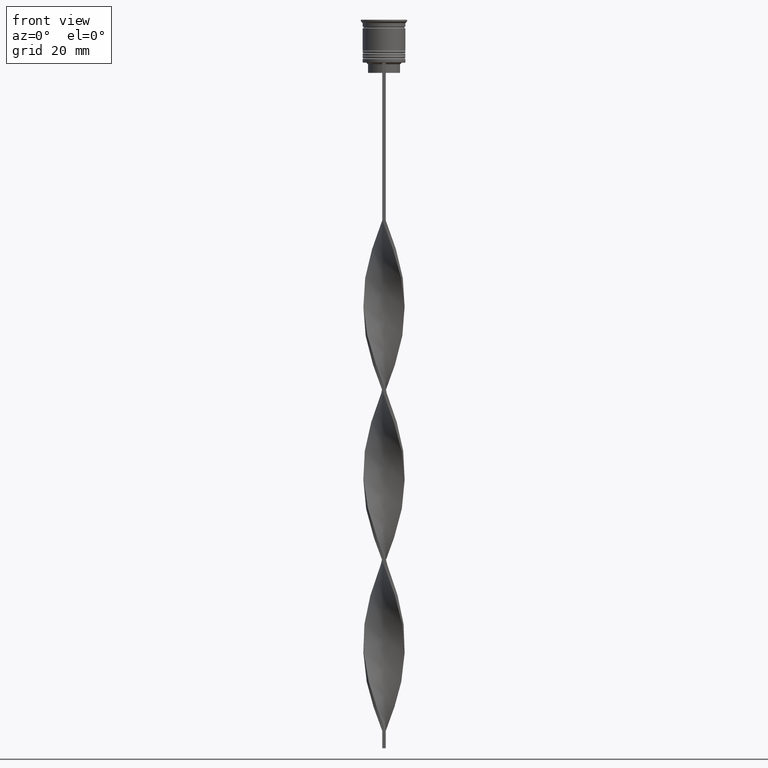
[diagram: clean part render]
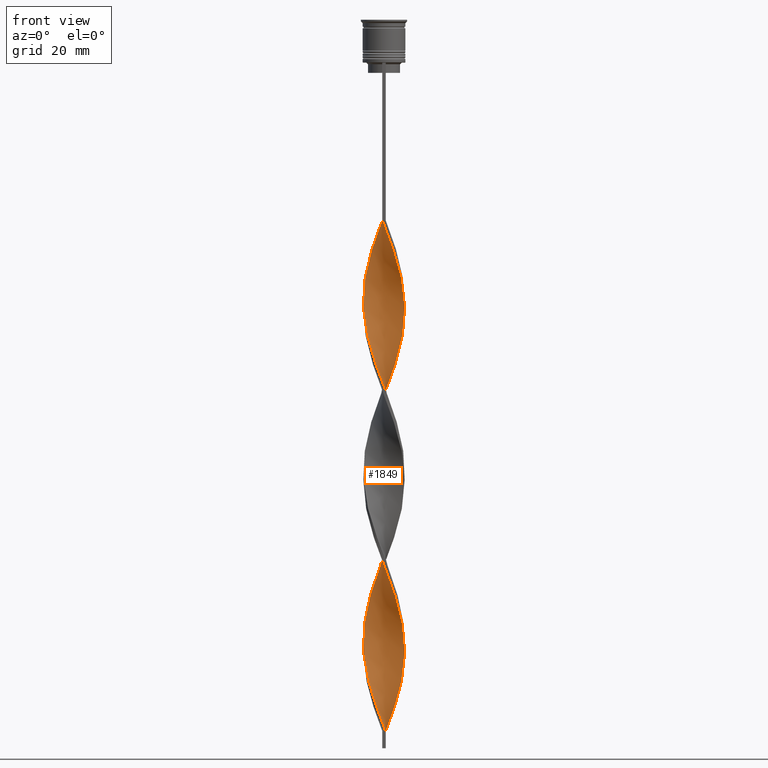
[diagram: same view with one face highlighted and labeled with its STEP entity id]
A machine part, front view. The second image highlights one B-rep face of the part: STEP entity #1849.
In plain terms, the highlighted face is a freeform B-spline surface patch.
Its self-contained STEP definition (entity closure, byte-faithful):
#2 = CARTESIAN_POINT ( 'NONE',  ( -2.131985436030567005, 5.658259501511265555, -62.88235294117647811 ) ) ;
#11 = CARTESIAN_POINT ( 'NONE',  ( 4.411678320489672345, -4.097205681500676988, -119.8529411764705799 ) ) ;
#13 = CARTESIAN_POINT ( 'NONE',  ( 2.236388528178715696, 5.617813528137046930, -150.5294117647058840 ) ) ;
#18 = CARTESIAN_POINT ( 'NONE',  ( -1.593983656741372767, 5.805963839195126042, -61.42156862745097357 ) ) ;
#27 = CARTESIAN_POINT ( 'NONE',  ( -0.4999999999999997780, 6.000000000000000000, -157.8333333333333144 ) ) ;
#34 = CARTESIAN_POINT ( 'NONE',  ( 5.907785354072955464, -1.161065118846089428, -128.6176470588235361 ) ) ;
#70 = CARTESIAN_POINT ( 'NONE',  ( -1.166039236662763656, 5.933094890902377294, -112.5490196078431495 ) ) ;
#77 = CARTESIAN_POINT ( 'NONE',  ( 0.6110105570574714262, -5.989713357011694939, -61.42156862745097357 ) ) ;
#85 = CARTESIAN_POINT ( 'NONE',  ( 4.411678320489673233, 4.097205681500676100, -96.48039215686274872 ) ) ;
#102 = CARTESIAN_POINT ( 'NONE',  ( 1.166039236662763656, -5.933094890902377294, -62.88235294117647101 ) ) ;
#127 = CARTESIAN_POINT ( 'NONE',  ( 0.05598187745217882844, -6.046331823121015248, -59.96078431372549034 ) ) ;
#130 = CARTESIAN_POINT ( 'NONE',  ( -4.114758515918087944, -4.430578386798787349, -194.3529411764705799 ) ) ;
#136 = CARTESIAN_POINT ( 'NONE',  ( 0.5000000000000005551, 6.000000000000000000, -108.1666666666666572 ) ) ;
#145 = CARTESIAN_POINT ( 'NONE',  ( -0.05598187745217925865, 6.046331823121015248, -109.6274509803921404 ) ) ;
#151 = CARTESIAN_POINT ( 'NONE',  ( 2.131985436030567893, 5.658259501511265555, -103.7843137254901933 ) ) ;
#160 = LINE ( 'NONE', #3704, #3080 ) ;
#163 = CARTESIAN_POINT ( 'NONE',  ( -5.928270878038556013, -1.051477244927328192, -184.1274509803921546 ) ) ;
#173 = CARTESIAN_POINT ( 'NONE',  ( -2.131985436030568781, -5.658259501511264666, -153.4509803921568789 ) ) ;
#184 = CARTESIAN_POINT ( 'NONE',  ( 1.055981877452177864, 5.953668176878987417, -206.0392156862745026 ) ) ;
#193 = CARTESIAN_POINT ( 'NONE',  ( 6.015373881509670007, 0.6136281867224272490, -86.25490196078432348 ) ) ;
#212 = CARTESIAN_POINT ( 'NONE',  ( 5.800196826636242697, 1.708502050969748609, -89.17647058823527573 ) ) ;
#219 = CARTESIAN_POINT ( 'NONE',  ( -5.634122364000872629, -2.122890762018907029, -87.71568627450979250 ) ) ;
#220 = CARTESIAN_POINT ( 'NONE',  ( 5.089420681871065888, 3.216799204635418352, -192.8921568627450824 ) ) ;
#222 = CARTESIAN_POINT ( 'NONE',  ( 1.166039236662765655, 5.933094890902375518, -153.4509803921568789 ) ) ;
#228 = CARTESIAN_POINT ( 'NONE',  ( -5.800196826636242697, 1.708502050969749497, -77.49019607843138147 ) ) ;
#241 = CARTESIAN_POINT ( 'NONE',  ( 1.593983656741371657, -5.805963839195126042, -111.0882352941176379 ) ) ;
#242 = CARTESIAN_POINT ( 'NONE',  ( 2.131985436030567893, 5.658259501511266443, -203.1176470588235361 ) ) ;
#243 = CARTESIAN_POINT ( 'NONE',  ( -4.032016302638261607, 4.506007880724164139, -168.0588235294117680 ) ) ;
#248 = CARTESIAN_POINT ( 'NONE',  ( -5.907785354072955464, 1.161065118846087207, -78.95098039215686470 ) ) ;
#257 = CARTESIAN_POINT ( 'NONE',  ( 6.015373881509670895, -0.6136281867224248066, -130.0784313725490335 ) ) ;
#264 = CARTESIAN_POINT ( 'NONE',  ( 1.055981877452178530, -5.953668176878986529, -109.6274509803921546 ) ) ;
#271 = CARTESIAN_POINT ( 'NONE',  ( -0.6110105570574716483, -5.989713357011694939, -105.2450980392156765 ) ) ;
#281 = CARTESIAN_POINT ( 'NONE',  ( 2.633686111825095377, 5.414212543332558525, -201.6568627450980387 ) ) ;
#292 = CARTESIAN_POINT ( 'NONE',  ( 3.230580290619941231, 5.111224263495680376, -147.6078431372548891 ) ) ;
#297 = CARTESIAN_POINT ( 'NONE',  ( 0.05598187745217871047, 6.046331823121016136, -156.3725490196078454 ) ) ;
#305 = CARTESIAN_POINT ( 'NONE',  ( -3.583701545128941568, 4.838086732939006929, -67.26470588235292780 ) ) ;
#312 = CARTESIAN_POINT ( 'NONE',  ( -1.055981877452178308, 5.953668176878985641, -159.2941176470588118 ) ) ;
#319 = CARTESIAN_POINT ( 'NONE',  ( 5.089420681871065000, -3.216799204635420129, -122.7745098039215605 ) ) ;
#325 = CARTESIAN_POINT ( 'NONE',  ( 5.928270878038556013, -1.051477244927329080, -81.87254901960783116 ) ) ;
#335 = VERTEX_POINT ( 'NONE', #440 ) ;
#372 = CARTESIAN_POINT ( 'NONE',  ( 0.6110105570574714262, -5.989713357011694939, -61.42156862745097357 ) ) ;
#388 = CARTESIAN_POINT ( 'NONE',  ( -4.486786045491808927, 4.014816431915658512, -122.7745098039215605 ) ) ;
#398 = CARTESIAN_POINT ( 'NONE',  ( 3.672669403269014143, -4.770901325147232974, -70.18627450980390847 ) ) ;
#405 = CARTESIAN_POINT ( 'NONE',  ( 0.5000000000000005551, 6.000000000000000000, -207.5000000000000000 ) ) ;
#406 = CARTESIAN_POINT ( 'NONE',  ( -5.800196826636242697, -1.708502050969747277, -138.8431372549019329 ) ) ;
#422 = CARTESIAN_POINT ( 'NONE',  ( -3.583701545128944232, -4.838086732939006041, -149.0686274509803866 ) ) ;
#429 = CARTESIAN_POINT ( 'NONE',  ( -5.089420681871066776, -3.216799204635417464, -143.2254901960784537 ) ) ;
#436 = CARTESIAN_POINT ( 'NONE',  ( 5.387501025401044252, 2.745194926993649975, -92.09803921568628482 ) ) ;
#440 = CARTESIAN_POINT ( 'NONE',  ( -0.4999999999999997780, -6.000000000000000000, -58.50000000000000000 ) ) ;
#445 = CARTESIAN_POINT ( 'NONE',  ( 4.114758515918087944, -4.430578386798787349, -170.9803921568627629 ) ) ;
#452 = CARTESIAN_POINT ( 'NONE',  ( -5.634122364000872629, 2.122890762018908362, -128.6176470588235361 ) ) ;
#475 = CARTESIAN_POINT ( 'NONE',  ( -0.05598187745217925865, 6.046331823121014359, -109.6274509803921546 ) ) ;
#491 = CARTESIAN_POINT ( 'NONE',  ( -5.437407565418680200, -2.644969083640991592, -188.5098039215686185 ) ) ;
#497 = CARTESIAN_POINT ( 'NONE',  ( 4.114758515918087944, -4.430578386798787349, -170.9803921568627629 ) ) ;
#504 = CARTESIAN_POINT ( 'NONE',  ( 1.166039236662765655, 5.933094890902376406, -153.4509803921568789 ) ) ;
#505 = CARTESIAN_POINT ( 'NONE',  ( 5.800196826636242697, 1.708502050969748609, -188.5098039215686185 ) ) ;
#507 = CARTESIAN_POINT ( 'NONE',  ( -3.583701545128941568, 4.838086732939006929, -166.5980392156862706 ) ) ;
#508 = CARTESIAN_POINT ( 'NONE',  ( 0.4999999999999995559, -2.000000000000000000, -207.5000000000000000 ) ) ;
#513 = CARTESIAN_POINT ( 'NONE',  ( -4.411678320489672345, 4.097205681500676988, -70.18627450980390847 ) ) ;
#522 = CARTESIAN_POINT ( 'NONE',  ( -6.025704593494046968, -0.5021420494578366922, -83.33333333333332860 ) ) ;
#523 = CARTESIAN_POINT ( 'NONE',  ( 2.633686111825095377, 5.414212543332558525, -201.6568627450980387 ) ) ;
#524 = CARTESIAN_POINT ( 'NONE',  ( 2.733484409399330239, 5.364518895816361876, -149.0686274509803866 ) ) ;
#532 = CARTESIAN_POINT ( 'NONE',  ( -1.055981877452178086, 5.953668176878986529, -59.96078431372549744 ) ) ;
#548 = CARTESIAN_POINT ( 'NONE',  ( 5.089420681871065000, -3.216799204635420129, -122.7745098039215605 ) ) ;
#550 = CARTESIAN_POINT ( 'NONE',  ( -5.634122364000872629, -2.122890762018907029, -187.0490196078431211 ) ) ;
#555 = CARTESIAN_POINT ( 'NONE',  ( -1.166039236662764988, -5.933094890902376406, -103.7843137254901933 ) ) ;
#564 = CARTESIAN_POINT ( 'NONE',  ( -5.800196826636242697, 1.708502050969749497, -77.49019607843136725 ) ) ;
#572 = CARTESIAN_POINT ( 'NONE',  ( 4.032016302638261607, 4.506007880724164139, -197.2745098039215463 ) ) ;
#581 = CARTESIAN_POINT ( 'NONE',  ( -5.437407565418680200, -2.644969083640991592, -89.17647058823528994 ) ) ;
#590 = CARTESIAN_POINT ( 'NONE',  ( -4.032016302638261607, 4.506007880724164139, -68.72549019607842524 ) ) ;
#602 = CARTESIAN_POINT ( 'NONE',  ( -2.633686111825095377, 5.414212543332558525, -163.6764705882352757 ) ) ;
#614 = CARTESIAN_POINT ( 'NONE',  ( 6.015373881509670007, -0.6136281867224248066, -130.0784313725490335 ) ) ;
#663 = CARTESIAN_POINT ( 'NONE',  ( 2.236388528178716140, -5.617813528137046930, -65.80392156862745878 ) ) ;
#681 = CARTESIAN_POINT ( 'NONE',  ( 1.593983656741372767, 5.805963839195126042, -105.2450980392156765 ) ) ;
#696 = CARTESIAN_POINT ( 'NONE',  ( 3.230580290619939898, -5.111224263495680376, -68.72549019607842524 ) ) ;
#697 = B_SPLINE_CURVE_WITH_KNOTS ( 'NONE', 3,
 ( #3692, #1995, #508, #2237 ),
 .UNSPECIFIED., .F., .F.,
 ( 4, 4 ),
 ( 0.000000000000000000, 1.000000000000000000 ),
 .UNSPECIFIED. ) ;
#704 = CARTESIAN_POINT ( 'NONE',  ( 5.830837162583068611, -1.600812440396821357, -80.41176470588234793 ) ) ;
#712 = CARTESIAN_POINT ( 'NONE',  ( 5.437407565418680200, -2.644969083640992480, -77.49019607843136725 ) ) ;
#726 = CARTESIAN_POINT ( 'NONE',  ( -5.089420681871066776, -3.216799204635417464, -143.2254901960784537 ) ) ;
#741 = CARTESIAN_POINT ( 'NONE',  ( -2.733484409399328463, 5.364518895816362765, -116.9313725490195992 ) ) ;
#747 = CARTESIAN_POINT ( 'NONE',  ( -0.4999999999999997780, 6.000000000000000888, -58.50000000000000000 ) ) ;
#748 = CARTESIAN_POINT ( 'NONE',  ( 2.733484409399328019, -5.364518895816363653, -166.5980392156862706 ) ) ;
#754 =( BOUNDED_CURVE ( )  B_SPLINE_CURVE ( 2, ( #2508, #127, #372, #102, #970, #663, #3609, #696, #2433, #2184, #2169, #1896, #948, #712, #1305, #1863, #2473, #3303, #1545, #2491, #3344, #3646, #3327, #1917, #2727, #3049, #85, #3662, #3034, #3593, #1598, #3379, #681, #1005, #1561, #145, #3358, #70, #2742, #1618, #1321, #1264, #2450, #3631, #388, #2198, #2799, #1882, #1575, #2759, #1284, #2144, #3008, #990, #3064, #406, #2780, #3086, #429, #1023, #2216, #1839, #1247, #3705, #3396, #2546, #3439, #1338, #1084, #1065, #791, #3686, #3456, #2874, #748, #1382, #2233, #445, #1401, #2271, #3414, #2251, #810, #3101, #1969, #2837, #2607, #1950, #2529, #505, #2310, #768, #220, #3117, #2894, #2291, #1636, #1658, #523, #242, #3141, #184, #2564 ),
 .UNSPECIFIED., .F., .T. ) 
 B_SPLINE_CURVE_WITH_KNOTS ( ( 3, 2, 2, 2, 2, 2, 2, 2, 2, 2, 2, 2, 2, 2, 2, 2, 2, 2, 2, 2, 2, 2, 2, 2, 2, 2, 2, 2, 2, 2, 2, 2, 2, 2, 2, 2, 2, 2, 2, 2, 2, 2, 2, 2, 2, 2, 2, 2, 2, 2, 2, 3 ),
 ( 0.000000000000000000, 0.01470588235294117453, 0.02941176470588234906, 0.04411764705882353227, 0.05882352941176469813, 0.07352941176470588480, 0.08823529411764706454, 0.1029411764705882443, 0.1176470588235293963, 0.1323529411764705899, 0.1470588235294117696, 0.1617647058823529493, 0.1764705882352941291, 0.1911764705882352811, 0.2058823529411764885, 0.2205882352941176405, 0.2352941176470587925, 0.2500000000000000000, 0.2647058823529411797, 0.2794117647058823595, 0.2941176470588235392, 0.3088235294117647189, 0.3235294117647058987, 0.3382352941176470229, 0.3529411764705882582, 0.3676470588235294379, 0.3823529411764705621, 0.3970588235294117418, 0.4117647058823529771, 0.4264705882352941013, 0.4411764705882352811, 0.4558823529411764608, 0.4705882352941175850, 0.4852941176470588203, 0.5000000000000000000, 0.5147058823529411242, 0.5294117647058823595, 0.5441176470588234837, 0.5588235294117647189, 0.5735294117647058432, 0.5882352941176470784, 0.6029411764705882026, 0.6176470588235294379, 0.6323529411764705621, 0.6470588235294117974, 0.6617647058823529216, 0.6764705882352940458, 0.6911764705882351700, 0.7058823529411765163, 0.7205882352941176405, 0.7352941176470588758, 0.7500000000000000000 ),
 .UNSPECIFIED. ) 
 CURVE ( )  GEOMETRIC_REPRESENTATION_ITEM ( )  RATIONAL_B_SPLINE_CURVE ( ( 1.000000000000000000, 0.9957341762950344677, 1.000000000000000000, 0.9957341762950344677, 1.000000000000000000, 0.9957341762950344677, 1.000000000000000000, 0.9957341762950344677, 1.000000000000000000, 0.9957341762950344677, 1.000000000000000000, 0.9957341762950344677, 1.000000000000000000, 0.9957341762950344677, 1.000000000000000000, 0.9957341762950344677, 1.000000000000000000, 0.9957341762950344677, 1.000000000000000000, 0.9957341762950344677, 1.000000000000000000, 0.9957341762950344677, 1.000000000000000000, 0.9957341762950344677, 1.000000000000000000, 0.9957341762950344677, 1.000000000000000000, 0.9957341762950344677, 1.000000000000000000, 0.9957341762950344677, 1.000000000000000000, 0.9957341762950344677, 1.000000000000000000, 0.9957341762950344677, 1.000000000000000000, 0.9957341762950344677, 1.000000000000000000, 0.9957341762950344677, 1.000000000000000000, 0.9957341762950344677, 1.000000000000000000, 0.9957341762950344677, 1.000000000000000000, 0.9957341762950344677, 1.000000000000000000, 0.9957341762950344677, 1.000000000000000000, 0.9957341762950344677, 1.000000000000000000, 0.9957341762950344677, 1.000000000000000000, 0.9957341762950344677, 1.000000000000000000, 0.9957341762950344677, 1.000000000000000000, 0.9957341762950344677, 1.000000000000000000, 0.9957341762950344677, 1.000000000000000000, 0.9957341762950344677, 1.000000000000000000, 0.9957341762950344677, 1.000000000000000000, 0.9957341762950344677, 1.000000000000000000, 0.9957341762950344677, 1.000000000000000000, 0.9957341762950344677, 1.000000000000000000, 0.9957341762950344677, 1.000000000000000000, 0.9957341762950344677, 1.000000000000000000, 0.9957341762950344677, 1.000000000000000000, 0.9957341762950344677, 1.000000000000000000, 0.9957341762950344677, 1.000000000000000000, 0.9957341762950344677, 1.000000000000000000, 0.9957341762950344677, 1.000000000000000000, 0.9957341762950344677, 1.000000000000000000, 0.9957341762950344677, 1.000000000000000000, 0.9957341762950344677, 1.000000000000000000, 0.9957341762950344677, 1.000000000000000000, 0.9957341762950344677, 1.000000000000000000, 0.9957341762950344677, 1.000000000000000000, 0.9957341762950344677, 1.000000000000000000, 0.9957341762950344677, 1.000000000000000000, 0.9957341762950344677, 1.000000000000000000, 0.9957341762950344677, 1.000000000000000000 ) ) 
 REPRESENTATION_ITEM ( '' )  );
#758 = CARTESIAN_POINT ( 'NONE',  ( -3.230580290619938566, 5.111224263495681264, -118.3921568627451109 ) ) ;
#768 = CARTESIAN_POINT ( 'NONE',  ( 5.387501025401044252, 2.745194926993649975, -191.4313725490196134 ) ) ;
#770 = CARTESIAN_POINT ( 'NONE',  ( -3.230580290619939898, -5.111224263495680376, -197.2745098039215463 ) ) ;
#780 = CARTESIAN_POINT ( 'NONE',  ( -5.387501025401044252, -2.745194926993649087, -141.7647058823529562 ) ) ;
#790 = CARTESIAN_POINT ( 'NONE',  ( -1.593983656741372767, 5.805963839195126042, -61.42156862745097357 ) ) ;
#791 = CARTESIAN_POINT ( 'NONE',  ( 0.6110105570574714262, -5.989713357011694939, -160.7549019607842808 ) ) ;
#793 = CARTESIAN_POINT ( 'NONE',  ( -1.166039236662764988, -5.933094890902377294, -203.1176470588235361 ) ) ;
#799 = CARTESIAN_POINT ( 'NONE',  ( -0.4999999999999997780, 6.000000000000000000, -58.50000000000000000 ) ) ;
#809 = CARTESIAN_POINT ( 'NONE',  ( 5.830837162583066835, 1.600812440396822467, -135.9215686274509665 ) ) ;
#810 = CARTESIAN_POINT ( 'NONE',  ( 5.634122364000872629, -2.122890762018906141, -178.2843137254901933 ) ) ;
#812 = CARTESIAN_POINT ( 'NONE',  ( -4.486786045491809816, -4.014816431915657624, -192.8921568627450824 ) ) ;
#818 = CARTESIAN_POINT ( 'NONE',  ( -6.015373881509669118, 0.6136281867224266939, -80.41176470588234793 ) ) ;
#827 = CARTESIAN_POINT ( 'NONE',  ( -5.593848926018643475, 2.226848488981699070, -76.02941176470586981 ) ) ;
#830 = CARTESIAN_POINT ( 'NONE',  ( -5.387501025401044252, 2.745194926993649087, -173.9019607843137294 ) ) ;
#841 = CARTESIAN_POINT ( 'NONE',  ( -5.148110570242105055, -3.122011780336760189, -90.63725490196078738 ) ) ;
#855 = CARTESIAN_POINT ( 'NONE',  ( -5.387501025401044252, 2.745194926993649087, -74.56862745098038658 ) ) ;
#857 = CARTESIAN_POINT ( 'NONE',  ( -6.020539237501858487, 0.05574306863229507719, -181.2058823529411598 ) ) ;
#862 = CARTESIAN_POINT ( 'NONE',  ( 2.633686111825096265, -5.414212543332558525, -114.0098039215686185 ) ) ;
#872 = CARTESIAN_POINT ( 'NONE',  ( 3.672669403269013255, 4.770901325147232974, -146.1470588235294201 ) ) ;
#874 = CARTESIAN_POINT ( 'NONE',  ( -0.6110105570574716483, -5.989713357011694939, -204.5784313725490335 ) ) ;
#880 = CARTESIAN_POINT ( 'NONE',  ( 6.025704593494046968, -0.5021420494578373583, -182.6666666666666572 ) ) ;
#890 = CARTESIAN_POINT ( 'NONE',  ( 1.701213882420740564, 5.775454209519710780, -151.9901960784313530 ) ) ;
#898 = CARTESIAN_POINT ( 'NONE',  ( 5.830837162583067723, 1.600812440396822467, -135.9215686274509665 ) ) ;
#910 = CARTESIAN_POINT ( 'NONE',  ( -5.089420681871065000, 3.216799204635419240, -172.4411764705882035 ) ) ;
#923 = CARTESIAN_POINT ( 'NONE',  ( 6.025704593494046968, -0.5021420494578373583, -83.33333333333332860 ) ) ;
#948 = CARTESIAN_POINT ( 'NONE',  ( 5.148110570242105055, -3.122011780336760634, -76.02941176470586981 ) ) ;
#949 = VERTEX_POINT ( 'NONE', #3111 ) ;
#970 = CARTESIAN_POINT ( 'NONE',  ( 1.701213882420740120, -5.775454209519710780, -64.34313725490196134 ) ) ;
#990 = CARTESIAN_POINT ( 'NONE',  ( -6.015373881509670895, -0.6136281867224278042, -135.9215686274509665 ) ) ;
#1005 = CARTESIAN_POINT ( 'NONE',  ( 1.055981877452177864, 5.953668176878987417, -106.7058823529411882 ) ) ;
#1007 = CARTESIAN_POINT ( 'NONE',  ( 0.4999999999999990563, -6.000000000000000000, -207.5000000000000000 ) ) ;
#1013 = CARTESIAN_POINT ( 'NONE',  ( 4.791340338341087524, 3.688403482277190282, -95.01960784313725128 ) ) ;
#1023 = CARTESIAN_POINT ( 'NONE',  ( -4.791340338341085747, -3.688403482277191170, -144.6862745098039227 ) ) ;
#1037 = CARTESIAN_POINT ( 'NONE',  ( 1.166039236662763656, -5.933094890902376406, -162.2156862745098351 ) ) ;
#1049 = CARTESIAN_POINT ( 'NONE',  ( -6.020539237501858487, 0.05574306863229507719, -181.2058823529411598 ) ) ;
#1057 = CARTESIAN_POINT ( 'NONE',  ( 4.486786045491808927, -4.014816431915657624, -172.4411764705882035 ) ) ;
#1065 = CARTESIAN_POINT ( 'NONE',  ( 0.05598187745217882844, -6.046331823121015248, -159.2941176470588118 ) ) ;
#1068 = CARTESIAN_POINT ( 'NONE',  ( -0.6110105570574716483, -5.989713357011694939, -204.5784313725490335 ) ) ;
#1074 = CARTESIAN_POINT ( 'NONE',  ( -1.055981877452178308, -5.953668176878988305, -156.3725490196078454 ) ) ;
#1084 = CARTESIAN_POINT ( 'NONE',  ( -0.4999999999999997780, -6.000000000000000000, -157.8333333333333144 ) ) ;
#1086 = CARTESIAN_POINT ( 'NONE',  ( -5.634122364000872629, -2.122890762018907029, -187.0490196078431211 ) ) ;
#1095 = CARTESIAN_POINT ( 'NONE',  ( -4.791340338341085747, -3.688403482277191170, -144.6862745098039227 ) ) ;
#1105 = CARTESIAN_POINT ( 'NONE',  ( -5.089420681871065000, 3.216799204635419240, -73.10784313725488914 ) ) ;
#1109 = CARTESIAN_POINT ( 'NONE',  ( -5.148110570242105055, -3.122011780336760189, -189.9705882352941160 ) ) ;
#1115 = CARTESIAN_POINT ( 'NONE',  ( -4.486786045491809816, -4.014816431915657624, -93.55882352941176805 ) ) ;
#1125 = CARTESIAN_POINT ( 'NONE',  ( 4.791340338341086635, -3.688403482277189394, -121.3137254901960773 ) ) ;
#1128 = EDGE_CURVE ( 'NONE', #335, #3291, #754, .T. ) ;
#1130 = CARTESIAN_POINT ( 'NONE',  ( -4.791340338341087524, 3.688403482277190282, -170.9803921568627629 ) ) ;
#1135 = CARTESIAN_POINT ( 'NONE',  ( -3.672669403269015032, -4.770901325147232086, -96.48039215686274872 ) ) ;
#1136 = ORIENTED_EDGE ( 'NONE', *, *, #1128, .F. ) ;
#1143 = CARTESIAN_POINT ( 'NONE',  ( -5.928270878038556013, -1.051477244927328192, -84.79411764705882604 ) ) ;
#1153 = CARTESIAN_POINT ( 'NONE',  ( -5.089420681871065000, 3.216799204635419240, -73.10784313725488914 ) ) ;
#1166 = CARTESIAN_POINT ( 'NONE',  ( 5.800196826636242697, -1.708502050969749053, -127.1568627450980244 ) ) ;
#1168 = CARTESIAN_POINT ( 'NONE',  ( 1.701213882420740564, 5.775454209519710780, -151.9901960784313530 ) ) ;
#1175 = CARTESIAN_POINT ( 'NONE',  ( -6.025704593494046968, -0.5021420494578366922, -83.33333333333332860 ) ) ;
#1185 = CARTESIAN_POINT ( 'NONE',  ( 2.733484409399330239, 5.364518895816361876, -149.0686274509803866 ) ) ;
#1193 = CARTESIAN_POINT ( 'NONE',  ( 4.791340338341086635, -3.688403482277189394, -121.3137254901960631 ) ) ;
#1203 = CARTESIAN_POINT ( 'NONE',  ( -3.135386787619624638, 5.170165585153851495, -165.1372549019608016 ) ) ;
#1211 = CARTESIAN_POINT ( 'NONE',  ( 6.025704593494046968, 0.5021420494578359150, -133.0000000000000000 ) ) ;
#1247 = CARTESIAN_POINT ( 'NONE',  ( -3.583701545128944232, -4.838086732939006041, -149.0686274509803866 ) ) ;
#1264 = CARTESIAN_POINT ( 'NONE',  ( -3.230580290619938122, 5.111224263495681264, -118.3921568627451109 ) ) ;
#1284 = CARTESIAN_POINT ( 'NONE',  ( -5.928270878038556013, 1.051477244927328636, -131.5392156862745310 ) ) ;
#1305 = CARTESIAN_POINT ( 'NONE',  ( 5.634122364000872629, -2.122890762018906141, -78.95098039215686470 ) ) ;
#1307 = CARTESIAN_POINT ( 'NONE',  ( -2.236388528178717028, -5.617813528137046042, -200.1960784313725696 ) ) ;
#1312 = CARTESIAN_POINT ( 'NONE',  ( -1.166039236662763656, 5.933094890902376406, -112.5490196078431495 ) ) ;
#1321 = CARTESIAN_POINT ( 'NONE',  ( -2.733484409399328463, 5.364518895816362765, -116.9313725490195992 ) ) ;
#1326 = CARTESIAN_POINT ( 'NONE',  ( -0.4999999999999997780, 6.000000000000000888, -58.50000000000000000 ) ) ;
#1327 = CARTESIAN_POINT ( 'NONE',  ( -5.148110570242105943, 3.122011780336759745, -125.6960784313725412 ) ) ;
#1337 = DIRECTION ( 'NONE',  ( 0.000000000000000000, 1.000000000000000000, 0.000000000000000000 ) ) ;
#1338 = CARTESIAN_POINT ( 'NONE',  ( -1.055981877452178530, -5.953668176878987417, -156.3725490196078454 ) ) ;
#1353 = CARTESIAN_POINT ( 'NONE',  ( 0.6110105570574714262, -5.989713357011694939, -160.7549019607842808 ) ) ;
#1365 = CARTESIAN_POINT ( 'NONE',  ( -4.486786045491809816, -4.014816431915657624, -192.8921568627450824 ) ) ;
#1372 = CARTESIAN_POINT ( 'NONE',  ( -4.486786045491808927, 4.014816431915658512, -122.7745098039215605 ) ) ;
#1382 = CARTESIAN_POINT ( 'NONE',  ( 3.230580290619939898, -5.111224263495680376, -168.0588235294117680 ) ) ;
#1385 = CARTESIAN_POINT ( 'NONE',  ( -3.672669403269015032, -4.770901325147232086, -195.8137254901960773 ) ) ;
#1392 = CARTESIAN_POINT ( 'NONE',  ( -0.6110105570574700939, 5.989713357011694939, -111.0882352941176379 ) ) ;
#1400 = CARTESIAN_POINT ( 'NONE',  ( 3.135386787619624194, -5.170165585153852383, -115.4705882352941018 ) ) ;
#1401 = CARTESIAN_POINT ( 'NONE',  ( 4.486786045491808927, -4.014816431915657624, -172.4411764705882035 ) ) ;
#1404 = CARTESIAN_POINT ( 'NONE',  ( -6.025704593494046968, -0.5021420494578366922, -182.6666666666666572 ) ) ;
#1414 = CARTESIAN_POINT ( 'NONE',  ( 4.411678320489673233, 4.097205681500676100, -195.8137254901960773 ) ) ;
#1425 = CARTESIAN_POINT ( 'NONE',  ( 3.583701545128942012, -4.838086732939006041, -116.9313725490195992 ) ) ;
#1432 = CARTESIAN_POINT ( 'NONE',  ( -5.437407565418680200, -2.644969083640991592, -89.17647058823527573 ) ) ;
#1441 = CARTESIAN_POINT ( 'NONE',  ( 6.020539237501858487, -0.05574306863229442494, -131.5392156862745310 ) ) ;
#1448 = CARTESIAN_POINT ( 'NONE',  ( 1.593983656741371657, -5.805963839195126042, -111.0882352941176379 ) ) ;
#1455 = CARTESIAN_POINT ( 'NONE',  ( 4.486786045491810704, 4.014816431915656736, -143.2254901960784537 ) ) ;
#1459 = CARTESIAN_POINT ( 'NONE',  ( -1.701213882420740120, -5.775454209519710780, -201.6568627450980387 ) ) ;
#1467 = CARTESIAN_POINT ( 'NONE',  ( 2.131985436030567005, -5.658259501511265555, -112.5490196078431495 ) ) ;
#1481 = CARTESIAN_POINT ( 'NONE',  ( 5.907785354072955464, -1.161065118846089428, -128.6176470588235361 ) ) ;
#1484 = CARTESIAN_POINT ( 'NONE',  ( 4.114758515918086168, 4.430578386798788237, -144.6862745098039227 ) ) ;
#1492 = CARTESIAN_POINT ( 'NONE',  ( 3.135386787619624194, -5.170165585153852383, -115.4705882352940876 ) ) ;
#1499 = CARTESIAN_POINT ( 'NONE',  ( -1.593983656741372767, 5.805963839195126042, -160.7549019607842808 ) ) ;
#1507 = CARTESIAN_POINT ( 'NONE',  ( 6.020539237501858487, -0.05574306863229442494, -131.5392156862745310 ) ) ;
#1513 = CARTESIAN_POINT ( 'NONE',  ( 5.634122364000872629, -2.122890762018906141, -78.95098039215686470 ) ) ;
#1545 = CARTESIAN_POINT ( 'NONE',  ( 6.020539237501858487, 0.05574306863229420983, -84.79411764705882604 ) ) ;
#1561 = CARTESIAN_POINT ( 'NONE',  ( 0.5000000000000005551, 6.000000000000000000, -108.1666666666666572 ) ) ;
#1575 = CARTESIAN_POINT ( 'NONE',  ( -5.634122364000872629, 2.122890762018908362, -128.6176470588235361 ) ) ;
#1585 = CARTESIAN_POINT ( 'NONE',  ( 4.486786045491808927, -4.014816431915657624, -73.10784313725488914 ) ) ;
#1598 = CARTESIAN_POINT ( 'NONE',  ( 2.633686111825095377, 5.414212543332558525, -102.3235294117646959 ) ) ;
#1601 = CARTESIAN_POINT ( 'NONE',  ( -5.830837162583066835, -1.600812440396821801, -185.5882352941176237 ) ) ;
#1609 = CARTESIAN_POINT ( 'NONE',  ( 5.907785354072955464, 1.161065118846088096, -87.71568627450979250 ) ) ;
#1618 = CARTESIAN_POINT ( 'NONE',  ( -2.236388528178715696, 5.617813528137046042, -115.4705882352941018 ) ) ;
#1620 = CARTESIAN_POINT ( 'NONE',  ( -2.733484409399328019, -5.364518895816363653, -198.7352941176470722 ) ) ;
#1625 = CARTESIAN_POINT ( 'NONE',  ( 5.089420681871065888, 3.216799204635418352, -93.55882352941176805 ) ) ;
#1636 = CARTESIAN_POINT ( 'NONE',  ( 3.583701545128941568, 4.838086732939006929, -198.7352941176470722 ) ) ;
#1645 = CARTESIAN_POINT ( 'NONE',  ( 3.230580290619939898, -5.111224263495680376, -168.0588235294117680 ) ) ;
#1658 = CARTESIAN_POINT ( 'NONE',  ( 3.135386787619625526, 5.170165585153850607, -200.1960784313725696 ) ) ;
#1671 = CARTESIAN_POINT ( 'NONE',  ( -4.032016302638262495, -4.506007880724164139, -147.6078431372548891 ) ) ;
#1682 = CARTESIAN_POINT ( 'NONE',  ( -4.858813575065529911, -3.599054477032530563, -191.4313725490196134 ) ) ;
#1689 = CARTESIAN_POINT ( 'NONE',  ( 5.437407565418680200, -2.644969083640992480, -176.8235294117647243 ) ) ;
#1696 = CARTESIAN_POINT ( 'NONE',  ( 5.634122364000872629, 2.122890762018906141, -137.3823529411764639 ) ) ;
#1699 = CARTESIAN_POINT ( 'NONE',  ( -1.055981877452178086, 5.953668176878986529, -159.2941176470588118 ) ) ;
#1707 = CARTESIAN_POINT ( 'NONE',  ( 0.5000000000000005551, 6.000000000000000000, -207.5000000000000000 ) ) ;
#1715 = CARTESIAN_POINT ( 'NONE',  ( -1.701213882420740120, -5.775454209519710780, -102.3235294117646959 ) ) ;
#1717 = CARTESIAN_POINT ( 'NONE',  ( -2.633686111825095377, 5.414212543332558525, -163.6764705882352757 ) ) ;
#1728 = CARTESIAN_POINT ( 'NONE',  ( -5.387501025401044252, 2.745194926993649087, -74.56862745098038658 ) ) ;
#1737 = CARTESIAN_POINT ( 'NONE',  ( -3.230580290619939898, -5.111224263495680376, -97.94117647058824616 ) ) ;
#1739 = CARTESIAN_POINT ( 'NONE',  ( -1.166039236662764988, -5.933094890902376406, -203.1176470588235361 ) ) ;
#1746 = CARTESIAN_POINT ( 'NONE',  ( -0.05598187745217796107, -6.046331823121016136, -106.7058823529412024 ) ) ;
#1757 = CARTESIAN_POINT ( 'NONE',  ( 5.148110570242104167, 3.122011780336761966, -140.3039215686274588 ) ) ;
#1767 = CARTESIAN_POINT ( 'NONE',  ( 4.032016302638259830, -4.506007880724165027, -118.3921568627451109 ) ) ;
#1775 = CARTESIAN_POINT ( 'NONE',  ( -5.148110570242105055, -3.122011780336760189, -90.63725490196078738 ) ) ;
#1779 = CARTESIAN_POINT ( 'NONE',  ( 4.486786045491810704, 4.014816431915656736, -143.2254901960784537 ) ) ;
#1789 = CARTESIAN_POINT ( 'NONE',  ( -1.701213882420740120, -5.775454209519710780, -102.3235294117646959 ) ) ;
#1801 = CARTESIAN_POINT ( 'NONE',  ( -3.583701545128941568, 4.838086732939006929, -166.5980392156862706 ) ) ;
#1811 = CARTESIAN_POINT ( 'NONE',  ( 5.387501025401044252, -2.745194926993650419, -124.2352941176470580 ) ) ;
#1839 = CARTESIAN_POINT ( 'NONE',  ( -4.032016302638261607, -4.506007880724164139, -147.6078431372548891 ) ) ;
#1849 = ADVANCED_FACE ( 'NONE', ( #3335 ), #2750, .T. ) ;
#1863 = CARTESIAN_POINT ( 'NONE',  ( 5.830837162583067723, -1.600812440396821357, -80.41176470588234793 ) ) ;
#1882 = CARTESIAN_POINT ( 'NONE',  ( -5.437407565418680200, 2.644969083640992036, -127.1568627450980244 ) ) ;
#1896 = CARTESIAN_POINT ( 'NONE',  ( 4.858813575065529911, -3.599054477032529675, -74.56862745098038658 ) ) ;
#1904 = CARTESIAN_POINT ( 'NONE',  ( -5.800196826636242697, -1.708502050969747277, -138.8431372549019045 ) ) ;
#1917 = CARTESIAN_POINT ( 'NONE',  ( 5.387501025401044252, 2.745194926993649975, -92.09803921568628482 ) ) ;
#1926 = CARTESIAN_POINT ( 'NONE',  ( -0.4999999999999997780, -6.000000000000000000, -157.8333333333333144 ) ) ;
#1941 = CARTESIAN_POINT ( 'NONE',  ( -6.020539237501857599, -0.05574306863229214898, -134.4607843137254974 ) ) ;
#1950 = CARTESIAN_POINT ( 'NONE',  ( 6.015373881509670895, 0.6136281867224271380, -185.5882352941176237 ) ) ;
#1952 = CARTESIAN_POINT ( 'NONE',  ( -5.800196826636242697, 1.708502050969749497, -176.8235294117647243 ) ) ;
#1958 = CARTESIAN_POINT ( 'NONE',  ( 2.633686111825095377, 5.414212543332558525, -102.3235294117646959 ) ) ;
#1969 = CARTESIAN_POINT ( 'NONE',  ( 5.928270878038556013, -1.051477244927329080, -181.2058823529411598 ) ) ;
#1982 = CARTESIAN_POINT ( 'NONE',  ( 4.411678320489673233, 4.097205681500676100, -96.48039215686274872 ) ) ;
#1994 = CARTESIAN_POINT ( 'NONE',  ( 3.230580290619941231, 5.111224263495680376, -147.6078431372548891 ) ) ;
#1995 = CARTESIAN_POINT ( 'NONE',  ( 0.5000000000000000000, 2.000000000000000000, -207.5000000000000000 ) ) ;
#1999 = CARTESIAN_POINT ( 'NONE',  ( -4.791340338341087524, 3.688403482277190282, -71.64705882352943433 ) ) ;
#2006 = CARTESIAN_POINT ( 'NONE',  ( -5.830837162583066835, -1.600812440396821801, -86.25490196078432348 ) ) ;
#2008 = CARTESIAN_POINT ( 'NONE',  ( -4.411678320489672345, 4.097205681500676988, -169.5196078431372371 ) ) ;
#2015 = CARTESIAN_POINT ( 'NONE',  ( -3.135386787619624638, 5.170165585153851495, -65.80392156862747299 ) ) ;
#2023 = CARTESIAN_POINT ( 'NONE',  ( -4.486786045491809816, -4.014816431915657624, -93.55882352941176805 ) ) ;
#2027 = CARTESIAN_POINT ( 'NONE',  ( -2.733484409399328019, -5.364518895816363653, -198.7352941176470722 ) ) ;
#2037 = CARTESIAN_POINT ( 'NONE',  ( 5.593848926018643475, 2.226848488981698626, -189.9705882352941160 ) ) ;
#2050 = CARTESIAN_POINT ( 'NONE',  ( 5.437407565418680200, 2.644969083640990259, -138.8431372549019329 ) ) ;
#2060 = CARTESIAN_POINT ( 'NONE',  ( -4.114758515918087944, -4.430578386798787349, -95.01960784313725128 ) ) ;
#2069 = CARTESIAN_POINT ( 'NONE',  ( 2.633686111825096265, -5.414212543332558525, -114.0098039215686185 ) ) ;
#2079 = CARTESIAN_POINT ( 'NONE',  ( 5.907785354072955464, 1.161065118846088096, -187.0490196078431211 ) ) ;
#2089 = CARTESIAN_POINT ( 'NONE',  ( -0.05598187745217796107, -6.046331823121017024, -106.7058823529411882 ) ) ;
#2100 = CARTESIAN_POINT ( 'NONE',  ( 5.593848926018644363, -2.226848488981697294, -125.6960784313725412 ) ) ;
#2132 = VERTEX_POINT ( 'NONE', #1326 ) ;
#2144 = CARTESIAN_POINT ( 'NONE',  ( -6.025704593494046968, 0.5021420494578381355, -133.0000000000000000 ) ) ;
#2155 = CARTESIAN_POINT ( 'NONE',  ( 2.733484409399328019, -5.364518895816363653, -67.26470588235292780 ) ) ;
#2169 = CARTESIAN_POINT ( 'NONE',  ( 4.486786045491808927, -4.014816431915657624, -73.10784313725488914 ) ) ;
#2184 = CARTESIAN_POINT ( 'NONE',  ( 4.114758515918087944, -4.430578386798787349, -71.64705882352942012 ) ) ;
#2190 = CARTESIAN_POINT ( 'NONE',  ( 3.230580290619939898, -5.111224263495680376, -68.72549019607842524 ) ) ;
#2198 = CARTESIAN_POINT ( 'NONE',  ( -4.858813575065529911, 3.599054477032531008, -124.2352941176470580 ) ) ;
#2205 = CARTESIAN_POINT ( 'NONE',  ( -3.672669403269014143, 4.770901325147232974, -119.8529411764705799 ) ) ;
#2216 = CARTESIAN_POINT ( 'NONE',  ( -4.411678320489671457, -4.097205681500676988, -146.1470588235294201 ) ) ;
#2224 = CARTESIAN_POINT ( 'NONE',  ( 1.593983656741372767, 5.805963839195126042, -105.2450980392156765 ) ) ;
#2233 = CARTESIAN_POINT ( 'NONE',  ( 3.672669403269014143, -4.770901325147232974, -169.5196078431372371 ) ) ;
#2235 = CARTESIAN_POINT ( 'NONE',  ( -1.701213882420740120, -5.775454209519710780, -201.6568627450980387 ) ) ;
#2237 = CARTESIAN_POINT ( 'NONE',  ( 0.4999999999999990563, -6.000000000000000000, -207.5000000000000000 ) ) ;
#2243 = CARTESIAN_POINT ( 'NONE',  ( -4.411678320489671457, -4.097205681500676988, -146.1470588235294201 ) ) ;
#2251 = CARTESIAN_POINT ( 'NONE',  ( 5.437407565418680200, -2.644969083640992480, -176.8235294117647243 ) ) ;
#2259 = CARTESIAN_POINT ( 'NONE',  ( 2.236388528178716584, -5.617813528137047818, -165.1372549019608016 ) ) ;
#2271 = CARTESIAN_POINT ( 'NONE',  ( 4.858813575065529911, -3.599054477032529675, -173.9019607843137294 ) ) ;
#2282 = CARTESIAN_POINT ( 'NONE',  ( -1.593983656741371213, -5.805963839195126042, -154.9117647058823479 ) ) ;
#2290 = CARTESIAN_POINT ( 'NONE',  ( -1.166039236662764988, -5.933094890902377294, -103.7843137254901791 ) ) ;
#2291 = CARTESIAN_POINT ( 'NONE',  ( 4.032016302638260719, 4.506007880724164139, -197.2745098039215463 ) ) ;
#2294 = CARTESIAN_POINT ( 'NONE',  ( -3.672669403269015032, -4.770901325147232086, -195.8137254901960773 ) ) ;
#2301 = CARTESIAN_POINT ( 'NONE',  ( 4.791340338341087524, 3.688403482277190282, -194.3529411764705799 ) ) ;
#2309 = CARTESIAN_POINT ( 'NONE',  ( -4.411678320489672345, 4.097205681500676988, -70.18627450980390847 ) ) ;
#2310 = CARTESIAN_POINT ( 'NONE',  ( 5.593848926018643475, 2.226848488981698626, -189.9705882352941160 ) ) ;
#2312 = CARTESIAN_POINT ( 'NONE',  ( -5.830837162583067723, -1.600812440396821801, -185.5882352941176237 ) ) ;
#2320 = CARTESIAN_POINT ( 'NONE',  ( 3.135386787619625526, 5.170165585153850607, -200.1960784313725981 ) ) ;
#2329 = CARTESIAN_POINT ( 'NONE',  ( 5.387501025401044252, -2.745194926993650419, -124.2352941176470580 ) ) ;
#2331 = ORIENTED_EDGE ( 'NONE', *, *, #3504, .T. ) ;
#2334 = CARTESIAN_POINT ( 'NONE',  ( -2.131985436030567005, 5.658259501511265555, -162.2156862745098351 ) ) ;
#2345 = CARTESIAN_POINT ( 'NONE',  ( -5.634122364000872629, -2.122890762018907029, -87.71568627450979250 ) ) ;
#2355 = CARTESIAN_POINT ( 'NONE',  ( -4.858813575065529911, -3.599054477032530563, -92.09803921568628482 ) ) ;
#2358 = CARTESIAN_POINT ( 'NONE',  ( -5.089420681871065000, 3.216799204635419240, -172.4411764705882035 ) ) ;
#2366 = CARTESIAN_POINT ( 'NONE',  ( 1.055981877452177642, 5.953668176878988305, -206.0392156862745026 ) ) ;
#2377 = CARTESIAN_POINT ( 'NONE',  ( -2.236388528178717028, -5.617813528137046042, -100.8627450980392126 ) ) ;
#2384 = CARTESIAN_POINT ( 'NONE',  ( 3.583701545128941568, 4.838086732939006929, -198.7352941176470722 ) ) ;
#2392 = CARTESIAN_POINT ( 'NONE',  ( -4.791340338341087524, 3.688403482277190282, -170.9803921568627629 ) ) ;
#2410 = CARTESIAN_POINT ( 'NONE',  ( 5.148110570242105055, -3.122011780336760634, -76.02941176470586981 ) ) ;
#2433 = CARTESIAN_POINT ( 'NONE',  ( 3.672669403269014143, -4.770901325147232974, -70.18627450980390847 ) ) ;
#2442 = CARTESIAN_POINT ( 'NONE',  ( 1.166039236662763656, -5.933094890902376406, -62.88235294117647811 ) ) ;
#2450 = CARTESIAN_POINT ( 'NONE',  ( -3.672669403269014143, 4.770901325147232974, -119.8529411764705799 ) ) ;
#2473 = CARTESIAN_POINT ( 'NONE',  ( 5.928270878038556013, -1.051477244927329080, -81.87254901960783116 ) ) ;
#2481 = CARTESIAN_POINT ( 'NONE',  ( 4.858813575065529911, -3.599054477032529675, -74.56862745098038658 ) ) ;
#2491 = CARTESIAN_POINT ( 'NONE',  ( 6.015373881509670895, 0.6136281867224271380, -86.25490196078432348 ) ) ;
#2498 = CARTESIAN_POINT ( 'NONE',  ( -5.830837162583068611, 1.600812440396819580, -130.0784313725490335 ) ) ;
#2508 = CARTESIAN_POINT ( 'NONE',  ( -0.4999999999999997780, -6.000000000000000000, -58.50000000000000000 ) ) ;
#2514 = CARTESIAN_POINT ( 'NONE',  ( -6.015373881509670007, -0.6136281867224278042, -135.9215686274509665 ) ) ;
#2527 = CARTESIAN_POINT ( 'NONE',  ( -1.055981877452178308, 5.953668176878985641, -59.96078431372549034 ) ) ;
#2529 = CARTESIAN_POINT ( 'NONE',  ( 5.907785354072955464, 1.161065118846088096, -187.0490196078431211 ) ) ;
#2533 = CARTESIAN_POINT ( 'NONE',  ( -6.015373881509670007, 0.6136281867224266939, -179.7450980392157476 ) ) ;
#2539 = CARTESIAN_POINT ( 'NONE',  ( -1.701213882420741008, 5.775454209519710780, -114.0098039215686185 ) ) ;
#2546 = CARTESIAN_POINT ( 'NONE',  ( -2.131985436030568781, -5.658259501511265555, -153.4509803921568789 ) ) ;
#2549 = CARTESIAN_POINT ( 'NONE',  ( -5.593848926018643475, 2.226848488981699070, -175.3627450980391984 ) ) ;
#2557 = CARTESIAN_POINT ( 'NONE',  ( 3.135386787619625526, 5.170165585153850607, -100.8627450980392126 ) ) ;
#2564 = CARTESIAN_POINT ( 'NONE',  ( 0.5000000000000005551, 6.000000000000000000, -207.5000000000000000 ) ) ;
#2573 = CARTESIAN_POINT ( 'NONE',  ( -4.114758515918088833, 4.430578386798786461, -121.3137254901960631 ) ) ;
#2585 = CARTESIAN_POINT ( 'NONE',  ( 0.6110105570574696499, 5.989713357011694939, -154.9117647058823479 ) ) ;
#2591 = CARTESIAN_POINT ( 'NONE',  ( -3.135386787619624638, 5.170165585153851495, -165.1372549019608016 ) ) ;
#2597 = CARTESIAN_POINT ( 'NONE',  ( -5.593848926018643475, 2.226848488981699070, -76.02941176470586981 ) ) ;
#2606 = CARTESIAN_POINT ( 'NONE',  ( -2.733484409399328019, -5.364518895816363653, -99.40196078431372939 ) ) ;
#2607 = CARTESIAN_POINT ( 'NONE',  ( 6.020539237501858487, 0.05574306863229420983, -184.1274509803921546 ) ) ;
#2608 = CARTESIAN_POINT ( 'NONE',  ( -5.907785354072955464, 1.161065118846087207, -178.2843137254901933 ) ) ;
#2613 = CARTESIAN_POINT ( 'NONE',  ( 6.015373881509670007, 0.6136281867224272490, -185.5882352941176237 ) ) ;
#2621 = CARTESIAN_POINT ( 'NONE',  ( -3.135386787619624638, 5.170165585153851495, -65.80392156862745878 ) ) ;
#2627 = ORIENTED_EDGE ( 'NONE', *, *, #2831, .F. ) ;
#2630 = CARTESIAN_POINT ( 'NONE',  ( 5.830837162583068611, -1.600812440396821357, -179.7450980392157192 ) ) ;
#2637 = CARTESIAN_POINT ( 'NONE',  ( -6.020539237501858487, 0.05574306863229507719, -81.87254901960783116 ) ) ;
#2654 = CARTESIAN_POINT ( 'NONE',  ( 6.020539237501858487, 0.05574306863229420983, -184.1274509803921546 ) ) ;
#2663 = CARTESIAN_POINT ( 'NONE',  ( 2.131985436030567005, -5.658259501511266443, -112.5490196078431495 ) ) ;
#2672 = CARTESIAN_POINT ( 'NONE',  ( 5.089420681871065888, 3.216799204635418352, -192.8921568627450824 ) ) ;
#2682 = CARTESIAN_POINT ( 'NONE',  ( -4.032016302638260719, 4.506007880724164139, -168.0588235294117680 ) ) ;
#2689 = CARTESIAN_POINT ( 'NONE',  ( 5.928270878038556901, 1.051477244927326415, -134.4607843137254974 ) ) ;
#2727 = CARTESIAN_POINT ( 'NONE',  ( 5.089420681871065888, 3.216799204635418352, -93.55882352941176805 ) ) ;
#2735 = CARTESIAN_POINT ( 'NONE',  ( 0.05598187745217882844, -6.046331823121014359, -59.96078431372549744 ) ) ;
#2742 = CARTESIAN_POINT ( 'NONE',  ( -1.701213882420741008, 5.775454209519710780, -114.0098039215686185 ) ) ;
#2750 =( BOUNDED_SURFACE ( )  B_SPLINE_SURFACE ( 1, 2, ( 
 ( #2982, #2735, #77, #2442, #3602, #3637, #2155, #2190, #398, #3321, #1585, #2481, #2410, #3350, #1513, #704, #325, #923, #3281, #193, #1609, #212, #3423, #436, #1625, #1013, #1982, #2822, #2788, #2557, #1958, #151, #2224, #2805, #136, #475, #1392, #1312, #2539, #3653, #741, #758, #2205, #2573, #1372, #3388, #1327, #3150, #452, #2498, #3404, #3714, #1941, #2514, #3369, #1904, #3730, #780, #726, #1095, #2243, #1671, #422, #2848, #3093, #173, #2282, #1074, #1926, #3673, #1353, #1037, #3447, #2259, #3108, #1645, #3076, #497, #1057, #3697, #3125, #1689, #2865, #2630, #3525, #880, #2654, #2613, #2079, #3167, #2037, #2902, #2672, #2301, #1414, #572, #2384, #2320, #281, #3183, #2960, #2366, #1707 ),
 ( #799, #532, #18, #2, #2882, #2015, #305, #590, #513, #1999, #1153, #1728, #2597, #228, #248, #818, #3770, #1175, #3482, #3754, #2345, #1432, #841, #3507, #1115, #2060, #1135, #3202, #3237, #3464, #1789, #555, #3789, #1746, #2917, #264, #1448, #1467, #862, #1492, #3218, #1767, #2935, #1193, #319, #1811, #2100, #3543, #34, #614, #1507, #1211, #2689, #898, #3261, #2976, #3538, #3804, #1779, #1484, #3195, #1994, #524, #13, #1168, #222, #3176, #297, #2948, #1699, #3162, #2334, #1717, #2591, #507, #243, #2008, #1130, #2358, #830, #3748, #3498, #2608, #3474, #857, #1404, #3213, #2312, #550, #3232, #1109, #3520, #812, #3782, #2294, #3459, #2027, #2876, #1459, #1739, #874, #3764, #2912 ) ),
 .UNSPECIFIED., .F., .F., .F. ) 
 B_SPLINE_SURFACE_WITH_KNOTS ( ( 2, 2 ),
 ( 3, 2, 2, 2, 2, 2, 2, 2, 2, 2, 2, 2, 2, 2, 2, 2, 2, 2, 2, 2, 2, 2, 2, 2, 2, 2, 2, 2, 2, 2, 2, 2, 2, 2, 2, 2, 2, 2, 2, 2, 2, 2, 2, 2, 2, 2, 2, 2, 2, 2, 2, 3 ),
 ( 0.000000000000000000, 1.000000000000000000 ),
 ( 0.000000000000000000, 0.01470588235294117627, 0.02941176470588235253, 0.04411764705882353227, 0.05882352941176470507, 0.07352941176470588480, 0.08823529411764706454, 0.1029411764705882304, 0.1176470588235294101, 0.1323529411764705899, 0.1470588235294117696, 0.1617647058823529493, 0.1764705882352941291, 0.1911764705882352811, 0.2058823529411764608, 0.2205882352941176405, 0.2352941176470588203, 0.2500000000000000000, 0.2647058823529411797, 0.2794117647058823595, 0.2941176470588235392, 0.3088235294117647189, 0.3235294117647058987, 0.3382352941176470784, 0.3529411764705882582, 0.3676470588235294379, 0.3823529411764705621, 0.3970588235294117418, 0.4117647058823529216, 0.4264705882352941013, 0.4411764705882352811, 0.4558823529411764608, 0.4705882352941176405, 0.4852941176470588203, 0.5000000000000000000, 0.5147058823529411242, 0.5294117647058823595, 0.5441176470588234837, 0.5588235294117647189, 0.5735294117647058432, 0.5882352941176470784, 0.6029411764705882026, 0.6176470588235294379, 0.6323529411764705621, 0.6470588235294117974, 0.6617647058823529216, 0.6764705882352941568, 0.6911764705882352811, 0.7058823529411765163, 0.7205882352941176405, 0.7352941176470588758, 0.7500000000000000000 ),
 .UNSPECIFIED. ) 
 GEOMETRIC_REPRESENTATION_ITEM ( )  RATIONAL_B_SPLINE_SURFACE ( (
 ( 1.000000000000000000, 0.9957341762950344677, 1.000000000000000000, 0.9957341762950344677, 1.000000000000000000, 0.9957341762950344677, 1.000000000000000000, 0.9957341762950344677, 1.000000000000000000, 0.9957341762950344677, 1.000000000000000000, 0.9957341762950344677, 1.000000000000000000, 0.9957341762950344677, 1.000000000000000000, 0.9957341762950344677, 1.000000000000000000, 0.9957341762950344677, 1.000000000000000000, 0.9957341762950344677, 1.000000000000000000, 0.9957341762950344677, 1.000000000000000000, 0.9957341762950344677, 1.000000000000000000, 0.9957341762950344677, 1.000000000000000000, 0.9957341762950344677, 1.000000000000000000, 0.9957341762950344677, 1.000000000000000000, 0.9957341762950344677, 1.000000000000000000, 0.9957341762950344677, 1.000000000000000000, 0.9957341762950344677, 1.000000000000000000, 0.9957341762950344677, 1.000000000000000000, 0.9957341762950344677, 1.000000000000000000, 0.9957341762950344677, 1.000000000000000000, 0.9957341762950344677, 1.000000000000000000, 0.9957341762950344677, 1.000000000000000000, 0.9957341762950344677, 1.000000000000000000, 0.9957341762950344677, 1.000000000000000000, 0.9957341762950344677, 1.000000000000000000, 0.9957341762950344677, 1.000000000000000000, 0.9957341762950344677, 1.000000000000000000, 0.9957341762950344677, 1.000000000000000000, 0.9957341762950344677, 1.000000000000000000, 0.9957341762950344677, 1.000000000000000000, 0.9957341762950344677, 1.000000000000000000, 0.9957341762950344677, 1.000000000000000000, 0.9957341762950344677, 1.000000000000000000, 0.9957341762950344677, 1.000000000000000000, 0.9957341762950344677, 1.000000000000000000, 0.9957341762950344677, 1.000000000000000000, 0.9957341762950344677, 1.000000000000000000, 0.9957341762950344677, 1.000000000000000000, 0.9957341762950344677, 1.000000000000000000, 0.9957341762950344677, 1.000000000000000000, 0.9957341762950344677, 1.000000000000000000, 0.9957341762950344677, 1.000000000000000000, 0.9957341762950344677, 1.000000000000000000, 0.9957341762950344677, 1.000000000000000000, 0.9957341762950344677, 1.000000000000000000, 0.9957341762950344677, 1.000000000000000000, 0.9957341762950344677, 1.000000000000000000, 0.9957341762950344677, 1.000000000000000000, 0.9957341762950344677, 1.000000000000000000, 0.9957341762950344677, 1.000000000000000000),
 ( 1.000000000000000000, 0.9957341762950344677, 1.000000000000000000, 0.9957341762950344677, 1.000000000000000000, 0.9957341762950344677, 1.000000000000000000, 0.9957341762950344677, 1.000000000000000000, 0.9957341762950344677, 1.000000000000000000, 0.9957341762950344677, 1.000000000000000000, 0.9957341762950344677, 1.000000000000000000, 0.9957341762950344677, 1.000000000000000000, 0.9957341762950344677, 1.000000000000000000, 0.9957341762950344677, 1.000000000000000000, 0.9957341762950344677, 1.000000000000000000, 0.9957341762950344677, 1.000000000000000000, 0.9957341762950344677, 1.000000000000000000, 0.9957341762950344677, 1.000000000000000000, 0.9957341762950344677, 1.000000000000000000, 0.9957341762950344677, 1.000000000000000000, 0.9957341762950344677, 1.000000000000000000, 0.9957341762950344677, 1.000000000000000000, 0.9957341762950344677, 1.000000000000000000, 0.9957341762950344677, 1.000000000000000000, 0.9957341762950344677, 1.000000000000000000, 0.9957341762950344677, 1.000000000000000000, 0.9957341762950344677, 1.000000000000000000, 0.9957341762950344677, 1.000000000000000000, 0.9957341762950344677, 1.000000000000000000, 0.9957341762950344677, 1.000000000000000000, 0.9957341762950344677, 1.000000000000000000, 0.9957341762950344677, 1.000000000000000000, 0.9957341762950344677, 1.000000000000000000, 0.9957341762950344677, 1.000000000000000000, 0.9957341762950344677, 1.000000000000000000, 0.9957341762950344677, 1.000000000000000000, 0.9957341762950344677, 1.000000000000000000, 0.9957341762950344677, 1.000000000000000000, 0.9957341762950344677, 1.000000000000000000, 0.9957341762950344677, 1.000000000000000000, 0.9957341762950344677, 1.000000000000000000, 0.9957341762950344677, 1.000000000000000000, 0.9957341762950344677, 1.000000000000000000, 0.9957341762950344677, 1.000000000000000000, 0.9957341762950344677, 1.000000000000000000, 0.9957341762950344677, 1.000000000000000000, 0.9957341762950344677, 1.000000000000000000, 0.9957341762950344677, 1.000000000000000000, 0.9957341762950344677, 1.000000000000000000, 0.9957341762950344677, 1.000000000000000000, 0.9957341762950344677, 1.000000000000000000, 0.9957341762950344677, 1.000000000000000000, 0.9957341762950344677, 1.000000000000000000, 0.9957341762950344677, 1.000000000000000000, 0.9957341762950344677, 1.000000000000000000) ) ) 
 REPRESENTATION_ITEM ( '' )  SURFACE ( )  );
#2753 = EDGE_LOOP ( 'NONE', ( #2331, #3526, #2627, #1136 ) ) ;
#2759 = CARTESIAN_POINT ( 'NONE',  ( -5.830837162583068611, 1.600812440396819580, -130.0784313725490335 ) ) ;
#2780 = CARTESIAN_POINT ( 'NONE',  ( -5.593848926018642587, -2.226848488981700402, -140.3039215686274588 ) ) ;
#2782 = CARTESIAN_POINT ( 'NONE',  ( -6.025704593494046968, -0.5021420494578366922, -182.6666666666666856 ) ) ;
#2788 = CARTESIAN_POINT ( 'NONE',  ( 3.583701545128941568, 4.838086732939006929, -99.40196078431372939 ) ) ;
#2799 = CARTESIAN_POINT ( 'NONE',  ( -5.148110570242105943, 3.122011780336759745, -125.6960784313725412 ) ) ;
#2805 = CARTESIAN_POINT ( 'NONE',  ( 1.055981877452177642, 5.953668176878988305, -106.7058823529412024 ) ) ;
#2822 = CARTESIAN_POINT ( 'NONE',  ( 4.032016302638261607, 4.506007880724164139, -97.94117647058824616 ) ) ;
#2831 = EDGE_CURVE ( 'NONE', #3291, #949, #697, .T. ) ;
#2837 = CARTESIAN_POINT ( 'NONE',  ( 6.025704593494046968, -0.5021420494578373583, -182.6666666666666856 ) ) ;
#2848 = CARTESIAN_POINT ( 'NONE',  ( -3.135386787619623750, -5.170165585153852383, -150.5294117647058840 ) ) ;
#2865 = CARTESIAN_POINT ( 'NONE',  ( 5.634122364000872629, -2.122890762018906141, -178.2843137254901933 ) ) ;
#2873 = CARTESIAN_POINT ( 'NONE',  ( -3.672669403269015032, -4.770901325147232086, -96.48039215686274872 ) ) ;
#2874 = CARTESIAN_POINT ( 'NONE',  ( 2.236388528178716140, -5.617813528137046930, -165.1372549019608016 ) ) ;
#2876 = CARTESIAN_POINT ( 'NONE',  ( -2.236388528178717472, -5.617813528137046930, -200.1960784313725981 ) ) ;
#2882 = CARTESIAN_POINT ( 'NONE',  ( -2.633686111825095377, 5.414212543332558525, -64.34313725490196134 ) ) ;
#2893 = CARTESIAN_POINT ( 'NONE',  ( -2.633686111825095377, 5.414212543332558525, -64.34313725490196134 ) ) ;
#2894 = CARTESIAN_POINT ( 'NONE',  ( 4.411678320489673233, 4.097205681500676100, -195.8137254901960773 ) ) ;
#2902 = CARTESIAN_POINT ( 'NONE',  ( 5.387501025401044252, 2.745194926993649975, -191.4313725490196134 ) ) ;
#2910 = CARTESIAN_POINT ( 'NONE',  ( 5.593848926018644363, -2.226848488981697294, -125.6960784313725412 ) ) ;
#2912 = CARTESIAN_POINT ( 'NONE',  ( 0.4999999999999990563, -6.000000000000000000, -207.5000000000000000 ) ) ;
#2917 = CARTESIAN_POINT ( 'NONE',  ( 0.4999999999999990563, -6.000000000000000000, -108.1666666666666572 ) ) ;
#2925 = CARTESIAN_POINT ( 'NONE',  ( 4.858813575065529911, 3.599054477032529675, -141.7647058823529562 ) ) ;
#2935 = CARTESIAN_POINT ( 'NONE',  ( 4.411678320489672345, -4.097205681500676988, -119.8529411764705799 ) ) ;
#2943 = CARTESIAN_POINT ( 'NONE',  ( -4.114758515918087944, -4.430578386798787349, -95.01960784313726549 ) ) ;
#2948 = CARTESIAN_POINT ( 'NONE',  ( -0.4999999999999997780, 6.000000000000000000, -157.8333333333333144 ) ) ;
#2960 = CARTESIAN_POINT ( 'NONE',  ( 1.593983656741372767, 5.805963839195126042, -204.5784313725490335 ) ) ;
#2968 = CARTESIAN_POINT ( 'NONE',  ( -5.387501025401044252, 2.745194926993649087, -173.9019607843137294 ) ) ;
#2976 = CARTESIAN_POINT ( 'NONE',  ( 5.437407565418680200, 2.644969083640990259, -138.8431372549019045 ) ) ;
#2982 = CARTESIAN_POINT ( 'NONE',  ( -0.4999999999999997780, -6.000000000000000000, -58.50000000000000000 ) ) ;
#3004 =( BOUNDED_CURVE ( )  B_SPLINE_CURVE ( 2, ( #747, #2527, #790, #3685, #2893, #2621, #3471, #3174, #2309, #3211, #1105, #855, #827, #564, #3455, #3229, #2637, #522, #1143, #2006, #219, #581, #1775, #2355, #2023, #2943, #2873, #1737, #2606, #2377, #1715, #2290, #271, #2089, #3192, #3800, #241, #2663, #2069, #1400, #1425, #3762, #11, #1125, #548, #2329, #2910, #1166, #1481, #257, #1441, #3779, #3493, #809, #1696, #2050, #1757, #2925, #1455, #3518, #872, #292, #1185, #3535, #890, #504, #2585, #3744, #27, #312, #1499, #3551, #602, #1203, #1801, #2682, #3245, #2392, #910, #2968, #2549, #1952, #3088, #2533, #1049, #2782, #163, #1601, #1086, #491, #3119, #1682, #1365, #130, #1385, #770, #1620, #1307, #2235, #793, #1068, #3688, #1007 ),
 .UNSPECIFIED., .F., .T. ) 
 B_SPLINE_CURVE_WITH_KNOTS ( ( 3, 2, 2, 2, 2, 2, 2, 2, 2, 2, 2, 2, 2, 2, 2, 2, 2, 2, 2, 2, 2, 2, 2, 2, 2, 2, 2, 2, 2, 2, 2, 2, 2, 2, 2, 2, 2, 2, 2, 2, 2, 2, 2, 2, 2, 2, 2, 2, 2, 2, 2, 3 ),
 ( 0.000000000000000000, 0.01470588235294117453, 0.02941176470588234906, 0.04411764705882353227, 0.05882352941176469813, 0.07352941176470588480, 0.08823529411764706454, 0.1029411764705882443, 0.1176470588235293963, 0.1323529411764705899, 0.1470588235294117696, 0.1617647058823529493, 0.1764705882352941291, 0.1911764705882352811, 0.2058823529411764885, 0.2205882352941176405, 0.2352941176470587925, 0.2500000000000000000, 0.2647058823529411797, 0.2794117647058823595, 0.2941176470588235392, 0.3088235294117647189, 0.3235294117647058987, 0.3382352941176470229, 0.3529411764705882582, 0.3676470588235294379, 0.3823529411764705621, 0.3970588235294117418, 0.4117647058823529771, 0.4264705882352941013, 0.4411764705882352811, 0.4558823529411764608, 0.4705882352941175850, 0.4852941176470588203, 0.5000000000000000000, 0.5147058823529411242, 0.5294117647058823595, 0.5441176470588234837, 0.5588235294117647189, 0.5735294117647058432, 0.5882352941176470784, 0.6029411764705882026, 0.6176470588235294379, 0.6323529411764705621, 0.6470588235294117974, 0.6617647058823529216, 0.6764705882352940458, 0.6911764705882351700, 0.7058823529411765163, 0.7205882352941176405, 0.7352941176470588758, 0.7500000000000000000 ),
 .UNSPECIFIED. ) 
 CURVE ( )  GEOMETRIC_REPRESENTATION_ITEM ( )  RATIONAL_B_SPLINE_CURVE ( ( 1.000000000000000000, 0.9957341762950344677, 1.000000000000000000, 0.9957341762950344677, 1.000000000000000000, 0.9957341762950344677, 1.000000000000000000, 0.9957341762950344677, 1.000000000000000000, 0.9957341762950344677, 1.000000000000000000, 0.9957341762950344677, 1.000000000000000000, 0.9957341762950344677, 1.000000000000000000, 0.9957341762950344677, 1.000000000000000000, 0.9957341762950344677, 1.000000000000000000, 0.9957341762950344677, 1.000000000000000000, 0.9957341762950344677, 1.000000000000000000, 0.9957341762950344677, 1.000000000000000000, 0.9957341762950344677, 1.000000000000000000, 0.9957341762950344677, 1.000000000000000000, 0.9957341762950344677, 1.000000000000000000, 0.9957341762950344677, 1.000000000000000000, 0.9957341762950344677, 1.000000000000000000, 0.9957341762950344677, 1.000000000000000000, 0.9957341762950344677, 1.000000000000000000, 0.9957341762950344677, 1.000000000000000000, 0.9957341762950344677, 1.000000000000000000, 0.9957341762950344677, 1.000000000000000000, 0.9957341762950344677, 1.000000000000000000, 0.9957341762950344677, 1.000000000000000000, 0.9957341762950344677, 1.000000000000000000, 0.9957341762950344677, 1.000000000000000000, 0.9957341762950344677, 1.000000000000000000, 0.9957341762950344677, 1.000000000000000000, 0.9957341762950344677, 1.000000000000000000, 0.9957341762950344677, 1.000000000000000000, 0.9957341762950344677, 1.000000000000000000, 0.9957341762950344677, 1.000000000000000000, 0.9957341762950344677, 1.000000000000000000, 0.9957341762950344677, 1.000000000000000000, 0.9957341762950344677, 1.000000000000000000, 0.9957341762950344677, 1.000000000000000000, 0.9957341762950344677, 1.000000000000000000, 0.9957341762950344677, 1.000000000000000000, 0.9957341762950344677, 1.000000000000000000, 0.9957341762950344677, 1.000000000000000000, 0.9957341762950344677, 1.000000000000000000, 0.9957341762950344677, 1.000000000000000000, 0.9957341762950344677, 1.000000000000000000, 0.9957341762950344677, 1.000000000000000000, 0.9957341762950344677, 1.000000000000000000, 0.9957341762950344677, 1.000000000000000000, 0.9957341762950344677, 1.000000000000000000, 0.9957341762950344677, 1.000000000000000000, 0.9957341762950344677, 1.000000000000000000, 0.9957341762950344677, 1.000000000000000000, 0.9957341762950344677, 1.000000000000000000 ) ) 
 REPRESENTATION_ITEM ( '' )  );
#3008 = CARTESIAN_POINT ( 'NONE',  ( -6.020539237501857599, -0.05574306863229214898, -134.4607843137254974 ) ) ;
#3034 = CARTESIAN_POINT ( 'NONE',  ( 3.583701545128941568, 4.838086732939006929, -99.40196078431372939 ) ) ;
#3049 = CARTESIAN_POINT ( 'NONE',  ( 4.791340338341087524, 3.688403482277190282, -95.01960784313726549 ) ) ;
#3064 = CARTESIAN_POINT ( 'NONE',  ( -5.907785354072955464, -1.161065118846087207, -137.3823529411764639 ) ) ;
#3076 = CARTESIAN_POINT ( 'NONE',  ( 3.672669403269014143, -4.770901325147232974, -169.5196078431372371 ) ) ;
#3080 = VECTOR ( 'NONE', #1337, 1000.000000000000000 ) ;
#3086 = CARTESIAN_POINT ( 'NONE',  ( -5.387501025401044252, -2.745194926993649087, -141.7647058823529562 ) ) ;
#3088 = CARTESIAN_POINT ( 'NONE',  ( -5.907785354072955464, 1.161065118846087207, -178.2843137254901933 ) ) ;
#3093 = CARTESIAN_POINT ( 'NONE',  ( -2.633686111825095821, -5.414212543332558525, -151.9901960784313530 ) ) ;
#3101 = CARTESIAN_POINT ( 'NONE',  ( 5.830837162583067723, -1.600812440396821357, -179.7450980392157476 ) ) ;
#3108 = CARTESIAN_POINT ( 'NONE',  ( 2.733484409399328019, -5.364518895816363653, -166.5980392156862706 ) ) ;
#3111 = CARTESIAN_POINT ( 'NONE',  ( 0.4999999999999990563, -6.000000000000000000, -207.5000000000000000 ) ) ;
#3117 = CARTESIAN_POINT ( 'NONE',  ( 4.791340338341087524, 3.688403482277190282, -194.3529411764705799 ) ) ;
#3119 = CARTESIAN_POINT ( 'NONE',  ( -5.148110570242105055, -3.122011780336760189, -189.9705882352941160 ) ) ;
#3125 = CARTESIAN_POINT ( 'NONE',  ( 5.148110570242105055, -3.122011780336760634, -175.3627450980391984 ) ) ;
#3141 = CARTESIAN_POINT ( 'NONE',  ( 1.593983656741372767, 5.805963839195126042, -204.5784313725490335 ) ) ;
#3150 = CARTESIAN_POINT ( 'NONE',  ( -5.437407565418680200, 2.644969083640992036, -127.1568627450980102 ) ) ;
#3162 = CARTESIAN_POINT ( 'NONE',  ( -1.593983656741372767, 5.805963839195126042, -160.7549019607842808 ) ) ;
#3167 = CARTESIAN_POINT ( 'NONE',  ( 5.800196826636242697, 1.708502050969748609, -188.5098039215686185 ) ) ;
#3174 = CARTESIAN_POINT ( 'NONE',  ( -4.032016302638260719, 4.506007880724164139, -68.72549019607842524 ) ) ;
#3176 = CARTESIAN_POINT ( 'NONE',  ( 0.6110105570574696499, 5.989713357011694939, -154.9117647058823479 ) ) ;
#3183 = CARTESIAN_POINT ( 'NONE',  ( 2.131985436030567893, 5.658259501511265555, -203.1176470588235361 ) ) ;
#3192 = CARTESIAN_POINT ( 'NONE',  ( 0.4999999999999990563, -6.000000000000000000, -108.1666666666666572 ) ) ;
#3195 = CARTESIAN_POINT ( 'NONE',  ( 3.672669403269013255, 4.770901325147232974, -146.1470588235294201 ) ) ;
#3202 = CARTESIAN_POINT ( 'NONE',  ( -3.230580290619939898, -5.111224263495680376, -97.94117647058824616 ) ) ;
#3211 = CARTESIAN_POINT ( 'NONE',  ( -4.791340338341087524, 3.688403482277190282, -71.64705882352942012 ) ) ;
#3213 = CARTESIAN_POINT ( 'NONE',  ( -5.928270878038556013, -1.051477244927328192, -184.1274509803921546 ) ) ;
#3218 = CARTESIAN_POINT ( 'NONE',  ( 3.583701545128942012, -4.838086732939006041, -116.9313725490195992 ) ) ;
#3229 = CARTESIAN_POINT ( 'NONE',  ( -6.015373881509670007, 0.6136281867224266939, -80.41176470588234793 ) ) ;
#3232 = CARTESIAN_POINT ( 'NONE',  ( -5.437407565418680200, -2.644969083640991592, -188.5098039215686185 ) ) ;
#3237 = CARTESIAN_POINT ( 'NONE',  ( -2.733484409399328019, -5.364518895816363653, -99.40196078431372939 ) ) ;
#3245 = CARTESIAN_POINT ( 'NONE',  ( -4.411678320489672345, 4.097205681500676988, -169.5196078431372371 ) ) ;
#3261 = CARTESIAN_POINT ( 'NONE',  ( 5.634122364000872629, 2.122890762018906141, -137.3823529411764639 ) ) ;
#3281 = CARTESIAN_POINT ( 'NONE',  ( 6.020539237501858487, 0.05574306863229420983, -84.79411764705882604 ) ) ;
#3291 = VERTEX_POINT ( 'NONE', #405 ) ;
#3303 = CARTESIAN_POINT ( 'NONE',  ( 6.025704593494046968, -0.5021420494578373583, -83.33333333333332860 ) ) ;
#3321 = CARTESIAN_POINT ( 'NONE',  ( 4.114758515918087944, -4.430578386798787349, -71.64705882352943433 ) ) ;
#3327 = CARTESIAN_POINT ( 'NONE',  ( 5.593848926018643475, 2.226848488981698626, -90.63725490196078738 ) ) ;
#3335 = FACE_OUTER_BOUND ( 'NONE', #2753, .T. ) ;
#3344 = CARTESIAN_POINT ( 'NONE',  ( 5.907785354072955464, 1.161065118846088096, -87.71568627450979250 ) ) ;
#3350 = CARTESIAN_POINT ( 'NONE',  ( 5.437407565418680200, -2.644969083640992480, -77.49019607843138147 ) ) ;
#3358 = CARTESIAN_POINT ( 'NONE',  ( -0.6110105570574700939, 5.989713357011694939, -111.0882352941176379 ) ) ;
#3369 = CARTESIAN_POINT ( 'NONE',  ( -5.907785354072955464, -1.161065118846087207, -137.3823529411764639 ) ) ;
#3379 = CARTESIAN_POINT ( 'NONE',  ( 2.131985436030567893, 5.658259501511266443, -103.7843137254901791 ) ) ;
#3388 = CARTESIAN_POINT ( 'NONE',  ( -4.858813575065529911, 3.599054477032531008, -124.2352941176470580 ) ) ;
#3396 = CARTESIAN_POINT ( 'NONE',  ( -2.633686111825095821, -5.414212543332558525, -151.9901960784313530 ) ) ;
#3404 = CARTESIAN_POINT ( 'NONE',  ( -5.928270878038556013, 1.051477244927328636, -131.5392156862745310 ) ) ;
#3414 = CARTESIAN_POINT ( 'NONE',  ( 5.148110570242105055, -3.122011780336760634, -175.3627450980391984 ) ) ;
#3423 = CARTESIAN_POINT ( 'NONE',  ( 5.593848926018643475, 2.226848488981698626, -90.63725490196078738 ) ) ;
#3439 = CARTESIAN_POINT ( 'NONE',  ( -1.593983656741371213, -5.805963839195126042, -154.9117647058823479 ) ) ;
#3447 = CARTESIAN_POINT ( 'NONE',  ( 1.701213882420740120, -5.775454209519710780, -163.6764705882352757 ) ) ;
#3455 = CARTESIAN_POINT ( 'NONE',  ( -5.907785354072955464, 1.161065118846087207, -78.95098039215686470 ) ) ;
#3456 = CARTESIAN_POINT ( 'NONE',  ( 1.701213882420740120, -5.775454209519710780, -163.6764705882352757 ) ) ;
#3459 = CARTESIAN_POINT ( 'NONE',  ( -3.230580290619939898, -5.111224263495680376, -197.2745098039215463 ) ) ;
#3464 = CARTESIAN_POINT ( 'NONE',  ( -2.236388528178717472, -5.617813528137046930, -100.8627450980392126 ) ) ;
#3471 = CARTESIAN_POINT ( 'NONE',  ( -3.583701545128941568, 4.838086732939006929, -67.26470588235292780 ) ) ;
#3474 = CARTESIAN_POINT ( 'NONE',  ( -6.015373881509669118, 0.6136281867224266939, -179.7450980392157192 ) ) ;
#3482 = CARTESIAN_POINT ( 'NONE',  ( -5.928270878038556013, -1.051477244927328192, -84.79411764705882604 ) ) ;
#3493 = CARTESIAN_POINT ( 'NONE',  ( 5.928270878038556901, 1.051477244927326415, -134.4607843137254974 ) ) ;
#3498 = CARTESIAN_POINT ( 'NONE',  ( -5.800196826636242697, 1.708502050969749497, -176.8235294117647243 ) ) ;
#3504 = EDGE_CURVE ( 'NONE', #335, #2132, #160, .T. ) ;
#3507 = CARTESIAN_POINT ( 'NONE',  ( -4.858813575065529911, -3.599054477032530563, -92.09803921568628482 ) ) ;
#3508 = EDGE_CURVE ( 'NONE', #2132, #949, #3004, .T. ) ;
#3518 = CARTESIAN_POINT ( 'NONE',  ( 4.114758515918086168, 4.430578386798788237, -144.6862745098039227 ) ) ;
#3520 = CARTESIAN_POINT ( 'NONE',  ( -4.858813575065529911, -3.599054477032530563, -191.4313725490196134 ) ) ;
#3525 = CARTESIAN_POINT ( 'NONE',  ( 5.928270878038556013, -1.051477244927329080, -181.2058823529411598 ) ) ;
#3526 = ORIENTED_EDGE ( 'NONE', *, *, #3508, .T. ) ;
#3535 = CARTESIAN_POINT ( 'NONE',  ( 2.236388528178715251, 5.617813528137046042, -150.5294117647058840 ) ) ;
#3538 = CARTESIAN_POINT ( 'NONE',  ( 5.148110570242104167, 3.122011780336761966, -140.3039215686274588 ) ) ;
#3543 = CARTESIAN_POINT ( 'NONE',  ( 5.800196826636242697, -1.708502050969749053, -127.1568627450980102 ) ) ;
#3551 = CARTESIAN_POINT ( 'NONE',  ( -2.131985436030567005, 5.658259501511266443, -162.2156862745098351 ) ) ;
#3593 = CARTESIAN_POINT ( 'NONE',  ( 3.135386787619625526, 5.170165585153850607, -100.8627450980392126 ) ) ;
#3602 = CARTESIAN_POINT ( 'NONE',  ( 1.701213882420740120, -5.775454209519710780, -64.34313725490196134 ) ) ;
#3609 = CARTESIAN_POINT ( 'NONE',  ( 2.733484409399328019, -5.364518895816363653, -67.26470588235292780 ) ) ;
#3631 = CARTESIAN_POINT ( 'NONE',  ( -4.114758515918088833, 4.430578386798786461, -121.3137254901960773 ) ) ;
#3637 = CARTESIAN_POINT ( 'NONE',  ( 2.236388528178716584, -5.617813528137047818, -65.80392156862747299 ) ) ;
#3646 = CARTESIAN_POINT ( 'NONE',  ( 5.800196826636242697, 1.708502050969748609, -89.17647058823528994 ) ) ;
#3653 = CARTESIAN_POINT ( 'NONE',  ( -2.236388528178716140, 5.617813528137046930, -115.4705882352940876 ) ) ;
#3662 = CARTESIAN_POINT ( 'NONE',  ( 4.032016302638260719, 4.506007880724164139, -97.94117647058824616 ) ) ;
#3673 = CARTESIAN_POINT ( 'NONE',  ( 0.05598187745217882844, -6.046331823121014359, -159.2941176470588118 ) ) ;
#3685 = CARTESIAN_POINT ( 'NONE',  ( -2.131985436030567005, 5.658259501511266443, -62.88235294117647101 ) ) ;
#3686 = CARTESIAN_POINT ( 'NONE',  ( 1.166039236662763656, -5.933094890902377294, -162.2156862745098351 ) ) ;
#3688 = CARTESIAN_POINT ( 'NONE',  ( -0.05598187745217796107, -6.046331823121017024, -206.0392156862745026 ) ) ;
#3692 = CARTESIAN_POINT ( 'NONE',  ( 0.5000000000000005551, 6.000000000000000000, -207.5000000000000000 ) ) ;
#3697 = CARTESIAN_POINT ( 'NONE',  ( 4.858813575065529911, -3.599054477032529675, -173.9019607843137294 ) ) ;
#3704 = CARTESIAN_POINT ( 'NONE',  ( -0.4999999999999997780, -6.000000000000000000, -58.50000000000000000 ) ) ;
#3705 = CARTESIAN_POINT ( 'NONE',  ( -3.135386787619623750, -5.170165585153852383, -150.5294117647058840 ) ) ;
#3714 = CARTESIAN_POINT ( 'NONE',  ( -6.025704593494046968, 0.5021420494578381355, -133.0000000000000000 ) ) ;
#3730 = CARTESIAN_POINT ( 'NONE',  ( -5.593848926018642587, -2.226848488981700402, -140.3039215686274588 ) ) ;
#3744 = CARTESIAN_POINT ( 'NONE',  ( 0.05598187745217871047, 6.046331823121017024, -156.3725490196078454 ) ) ;
#3748 = CARTESIAN_POINT ( 'NONE',  ( -5.593848926018643475, 2.226848488981699070, -175.3627450980391984 ) ) ;
#3754 = CARTESIAN_POINT ( 'NONE',  ( -5.830837162583067723, -1.600812440396821801, -86.25490196078432348 ) ) ;
#3762 = CARTESIAN_POINT ( 'NONE',  ( 4.032016302638258942, -4.506007880724165027, -118.3921568627451109 ) ) ;
#3764 = CARTESIAN_POINT ( 'NONE',  ( -0.05598187745217796107, -6.046331823121016136, -206.0392156862745026 ) ) ;
#3770 = CARTESIAN_POINT ( 'NONE',  ( -6.020539237501858487, 0.05574306863229507719, -81.87254901960783116 ) ) ;
#3779 = CARTESIAN_POINT ( 'NONE',  ( 6.025704593494046968, 0.5021420494578359150, -133.0000000000000000 ) ) ;
#3782 = CARTESIAN_POINT ( 'NONE',  ( -4.114758515918087944, -4.430578386798787349, -194.3529411764705799 ) ) ;
#3789 = CARTESIAN_POINT ( 'NONE',  ( -0.6110105570574716483, -5.989713357011694939, -105.2450980392156765 ) ) ;
#3800 = CARTESIAN_POINT ( 'NONE',  ( 1.055981877452178752, -5.953668176878985641, -109.6274509803921404 ) ) ;
#3804 = CARTESIAN_POINT ( 'NONE',  ( 4.858813575065529911, 3.599054477032529675, -141.7647058823529562 ) ) ;